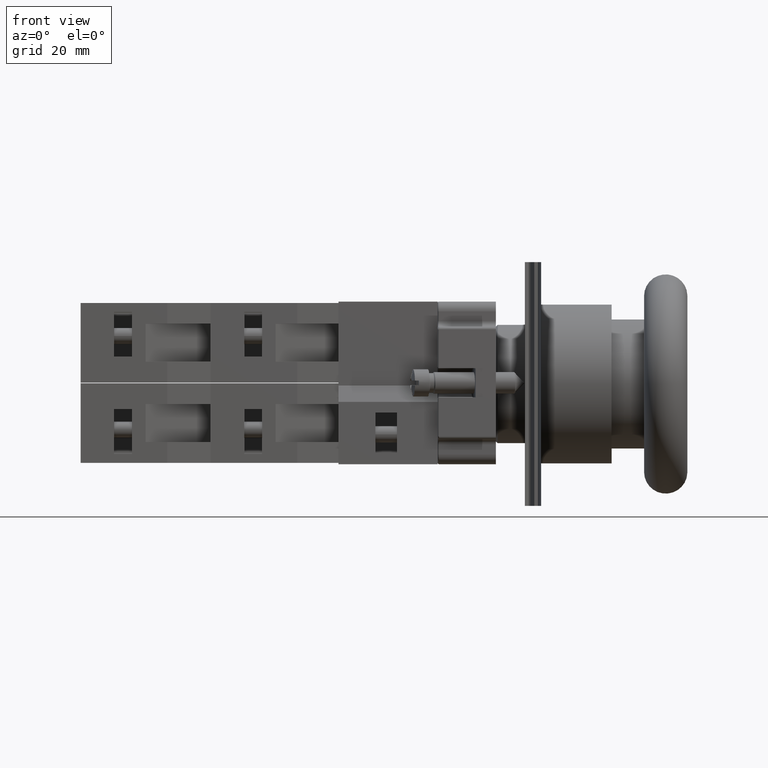
[diagram: clean part render]
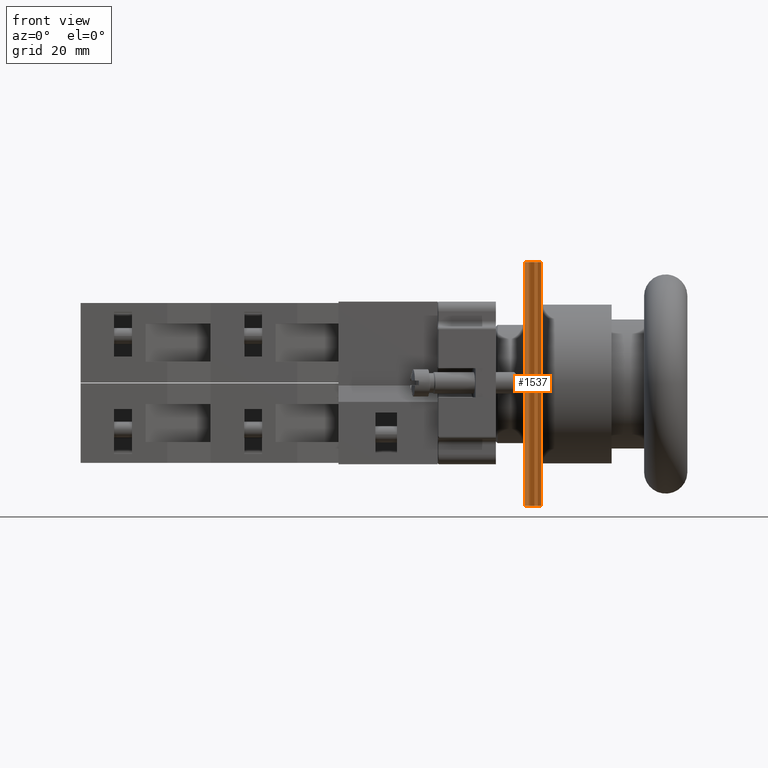
[diagram: same view with one face highlighted and labeled with its STEP entity id]
A machine part, front view. The second image highlights one B-rep face of the part: STEP entity #1537.
In plain terms, the highlighted face is a freeform B-spline surface patch.
Its self-contained STEP definition (entity closure, byte-faithful):
#1468=CARTESIAN_POINT('',(-12.704183619849172,-62.725398273954283,45.0));
#1469=VERTEX_POINT('',#1468);
#1476=CARTESIAN_POINT('',(-12.704183619849172,-62.725398273954283,0.0));
#1477=VERTEX_POINT('',#1476);
#1478=CARTESIAN_POINT('',(-12.704183619849172,-62.725398273954283,0.0));
#1479=DIRECTION('',(0.0,0.0,1.0));
#1480=VECTOR('',#1479,45.0);
#1481=LINE('',#1478,#1480);
#1482=EDGE_CURVE('',#1477,#1469,#1481,.T.);
#1497=CARTESIAN_POINT('',(-15.704183619849182,-62.725398273954283,0.0));
#1498=CARTESIAN_POINT('',(-14.283734517597093,-58.710287807173117,0.0));
#1499=CARTESIAN_POINT('',(-13.047229203726467,-69.825373706267470,0.0));
#1500=CARTESIAN_POINT('',(-14.371498841514271,-57.028426828334801,0.0));
#1501=CARTESIAN_POINT('',(-12.704183619849177,-62.725398273954298,0.0));
#1502=CARTESIAN_POINT('',(-15.704183619849182,-62.725398273954283,45.0));
#1503=CARTESIAN_POINT('',(-14.283734517597093,-58.710287807173117,45.0));
#1504=CARTESIAN_POINT('',(-13.047229203726467,-69.825373706267470,45.0));
#1505=CARTESIAN_POINT('',(-14.371498841514271,-57.028426828334801,45.0));
#1506=CARTESIAN_POINT('',(-12.704183619849177,-62.725398273954298,45.0));
#1507=B_SPLINE_SURFACE_WITH_KNOTS('',4,1,((#1497,#1502),(#1498,#1503),(#1499,#1504),(#1500,#1505),(#1501,#1506)),.UNSPECIFIED.,.F.,.F.,.U.,(5,5),(2,2),(0.0,1.0),(0.0,4.500000000000000),.UNSPECIFIED.);
#1508=CARTESIAN_POINT('',(-15.704183619849179,-62.725398273954283,45.0));
#1509=VERTEX_POINT('',#1508);
#1510=CARTESIAN_POINT('',(-12.704183619849177,-62.725398273954298,45.0));
#1511=CARTESIAN_POINT('',(-14.371498841514271,-57.028426828334801,45.0));
#1512=CARTESIAN_POINT('',(-13.047229203726467,-69.825373706267470,45.0));
#1513=CARTESIAN_POINT('',(-14.283734517597093,-58.710287807173117,45.0));
#1514=CARTESIAN_POINT('',(-15.704183619849182,-62.725398273954283,45.0));
#1515=QUASI_UNIFORM_CURVE('',4,(#1510,#1511,#1512,#1513,#1514),.UNSPECIFIED.,.F.,.U.);
#1516=EDGE_CURVE('',#1469,#1509,#1515,.T.);
#1517=ORIENTED_EDGE('',*,*,#1516,.T.);
#1518=CARTESIAN_POINT('',(-15.704183619849179,-62.725398273954283,0.0));
#1519=VERTEX_POINT('',#1518);
#1520=CARTESIAN_POINT('',(-15.704183619849179,-62.725398273954283,0.0));
#1521=DIRECTION('',(0.0,0.0,1.0));
#1522=VECTOR('',#1521,45.0);
#1523=LINE('',#1520,#1522);
#1524=EDGE_CURVE('',#1519,#1509,#1523,.T.);
#1525=ORIENTED_EDGE('',*,*,#1524,.F.);
#1526=CARTESIAN_POINT('',(-15.704183619849182,-62.725398273954283,0.0));
#1527=CARTESIAN_POINT('',(-14.283734517597093,-58.710287807173117,0.0));
#1528=CARTESIAN_POINT('',(-13.047229203726467,-69.825373706267470,0.0));
#1529=CARTESIAN_POINT('',(-14.371498841514271,-57.028426828334801,0.0));
#1530=CARTESIAN_POINT('',(-12.704183619849177,-62.725398273954298,0.0));
#1531=QUASI_UNIFORM_CURVE('',4,(#1526,#1527,#1528,#1529,#1530),.UNSPECIFIED.,.F.,.U.);
#1532=EDGE_CURVE('',#1519,#1477,#1531,.T.);
#1533=ORIENTED_EDGE('',*,*,#1532,.T.);
#1534=ORIENTED_EDGE('',*,*,#1482,.T.);
#1535=EDGE_LOOP('',(#1517,#1525,#1533,#1534));
#1536=FACE_OUTER_BOUND('',#1535,.T.);
#1537=ADVANCED_FACE('',(#1536),#1507,.T.);